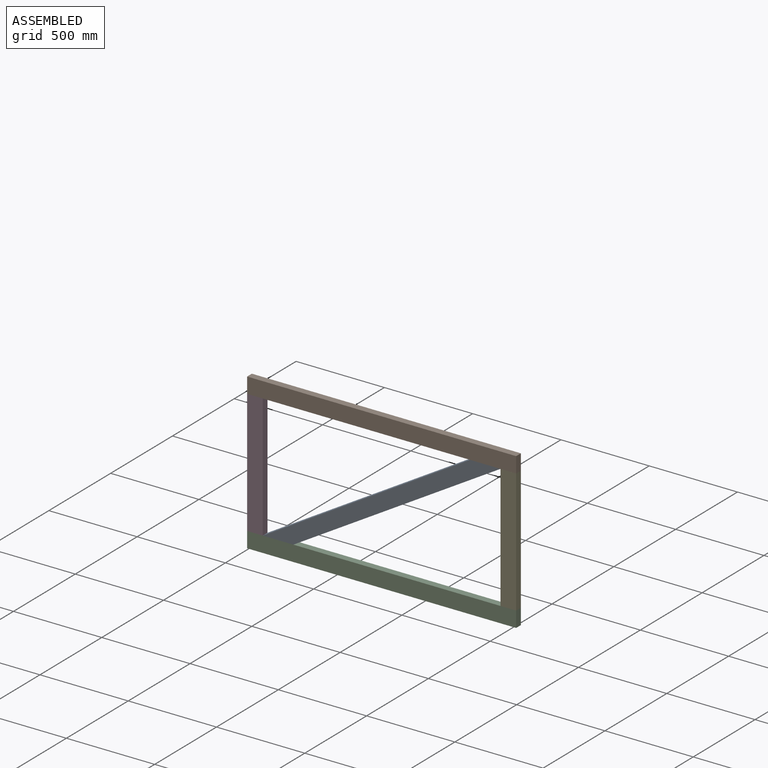
[diagram: assembled view]
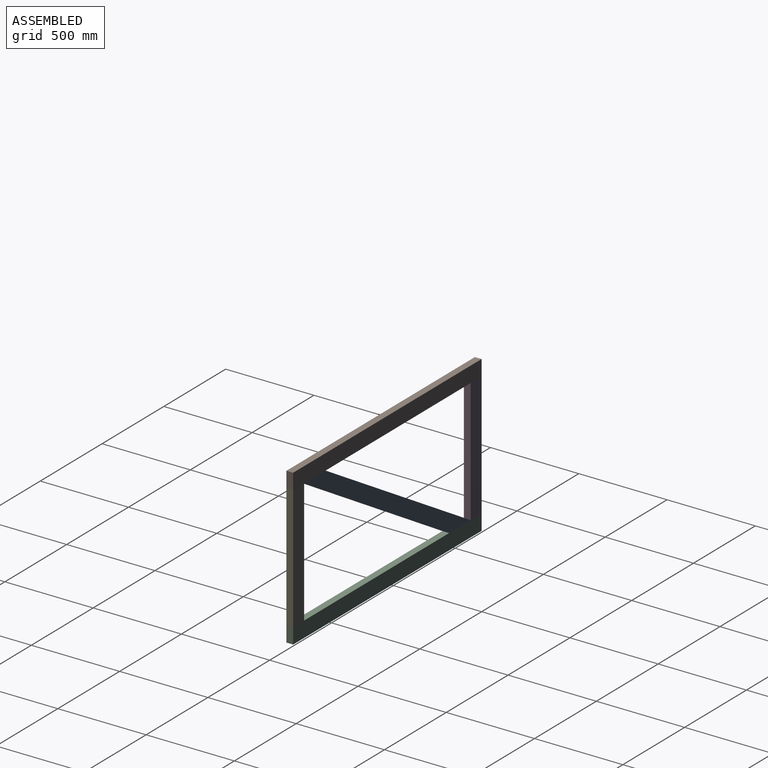
[diagram: assembled view, second angle]
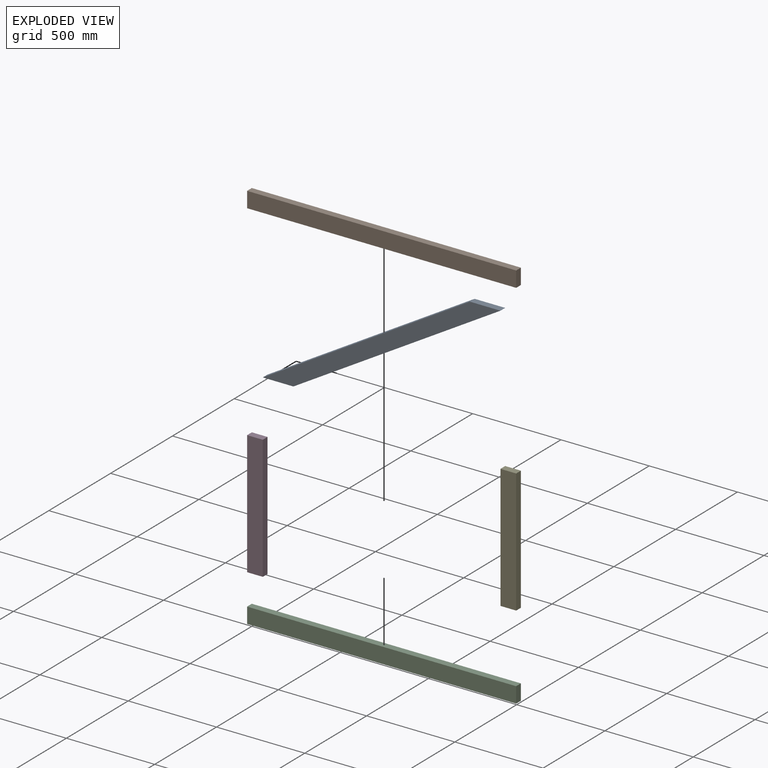
[diagram: exploded view]
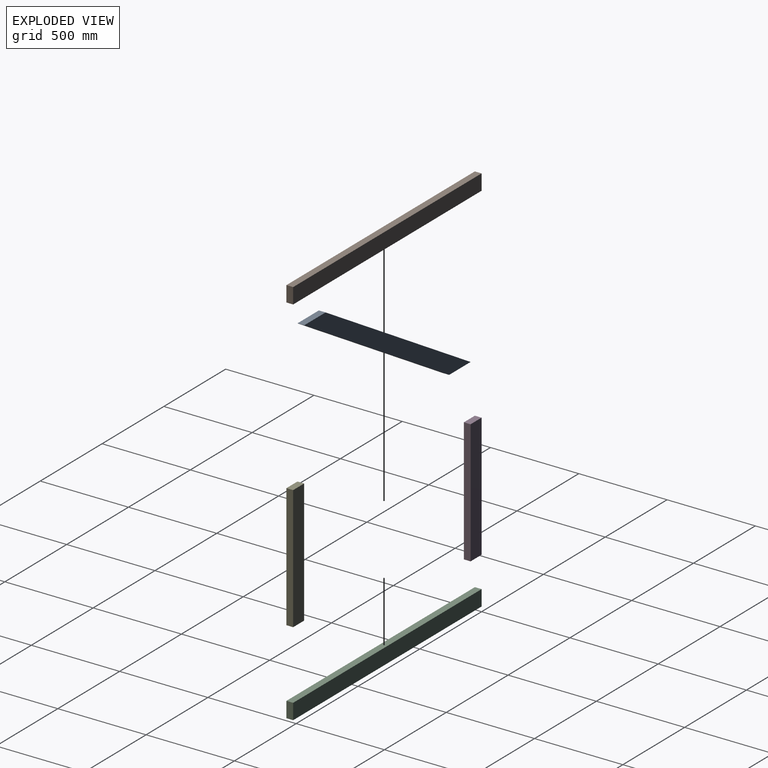
[diagram: exploded view, second angle]
ASSEMBLY  parts=5 mates=4
PART A: 6 faces, bbox 1346.2x701.7x38.1 mm
  f0: plane 173.18x38.1mm, normal (0,1,0), area 6598.1mm2, adj f1,f3,f4,f5
  f1: plane 1173.02x701.68mm, normal (-0.51,0.86,0), area 52077.7mm2, adj f0,f2,f4,f5
  f2: plane 173.18x38.1mm, normal (0,-1,0), area 6598.1mm2, adj f1,f3,f4,f5
  f3: plane 1173.02x701.68mm, normal (0.51,-0.86,0), area 52077.7mm2, adj f0,f2,f4,f5
  f4: plane 1346.2x701.68mm, normal (0,0,1), area 121514.6mm2, adj f0,f1,f2,f3
  f5: plane 1346.2x701.68mm, normal (0,0,-1), area 121514.6mm2, adj f0,f1,f2,f3
PART B: 6 faces, bbox 1524x88.9x38.1 mm
  f0: plane 88.9x38.1mm, normal (-1,0,0), area 3387.1mm2, adj f1,f3,f4,f5
  f1: plane 1524x38.1mm, normal (0,-1,0), area 58064.4mm2, adj f0,f2,f4,f5
  f2: plane 88.9x38.1mm, normal (1,0,0), area 3387.1mm2, adj f1,f3,f4,f5
  f3: plane 1524x38.1mm, normal (0,1,0), area 58064.4mm2, adj f0,f2,f4,f5
  f4: plane 1524x88.9mm, normal (0,0,1), area 135483.6mm2, adj f0,f1,f2,f3
  f5: plane 1524x88.9mm, normal (0,0,-1), area 135483.6mm2, adj f0,f1,f2,f3
PART C: same geometry as B
PART D: 6 faces, bbox 88.9x701.7x38.1 mm
  f0: plane 701.68x38.1mm, normal (-1,0,0), area 26733.8mm2, adj f1,f3,f4,f5
  f1: plane 88.9x38.1mm, normal (0,-1,0), area 3387.1mm2, adj f0,f2,f4,f5
  f2: plane 701.68x38.1mm, normal (1,0,0), area 26733.8mm2, adj f1,f3,f4,f5
  f3: plane 88.9x38.1mm, normal (0,1,0), area 3387.1mm2, adj f0,f2,f4,f5
  f4: plane 701.68x88.9mm, normal (0,0,1), area 62378.9mm2, adj f0,f1,f2,f3
  f5: plane 701.68x88.9mm, normal (0,0,-1), area 62378.9mm2, adj f0,f1,f2,f3
PART E: same geometry as D
PLACE A rot(axis=(1,0,0),90deg) t=(0,0,-879.48)mm
PLACE B rot(axis=(-1,0,0),90deg) t=(0,-38.1,790.58)mm
PLACE C rot(axis=(1,0,0),90deg) t=(0,0,-1670.05)mm
PLACE D rot(axis=(1,0,0),90deg) t=(0,0,-879.48)mm
PLACE E rot(axis=(-1,0,0),90deg) t=(1435.1,-38.1,0)mm
MATE fastened E.f1 <-> B.f3  axis (0,0,1) through (1524,-38.1,-88.9)mm
MATE fastened C.f3 <-> D.f1  axis (0,0,1) through (0,-38.1,-790.58)mm
MATE fastened A.f2 <-> D.f1  axis (0,0,-1) through (88.9,-38.1,-790.58)mm
MATE fastened D.f3 <-> B.f3  axis (0,0,1) through (0,-38.1,-88.9)mm
